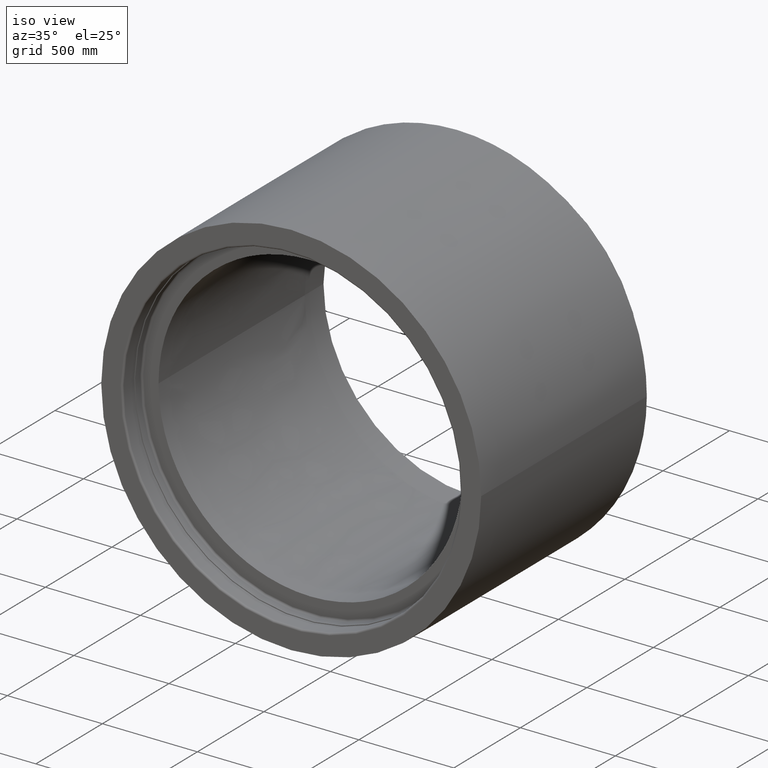
[diagram: clean part render]
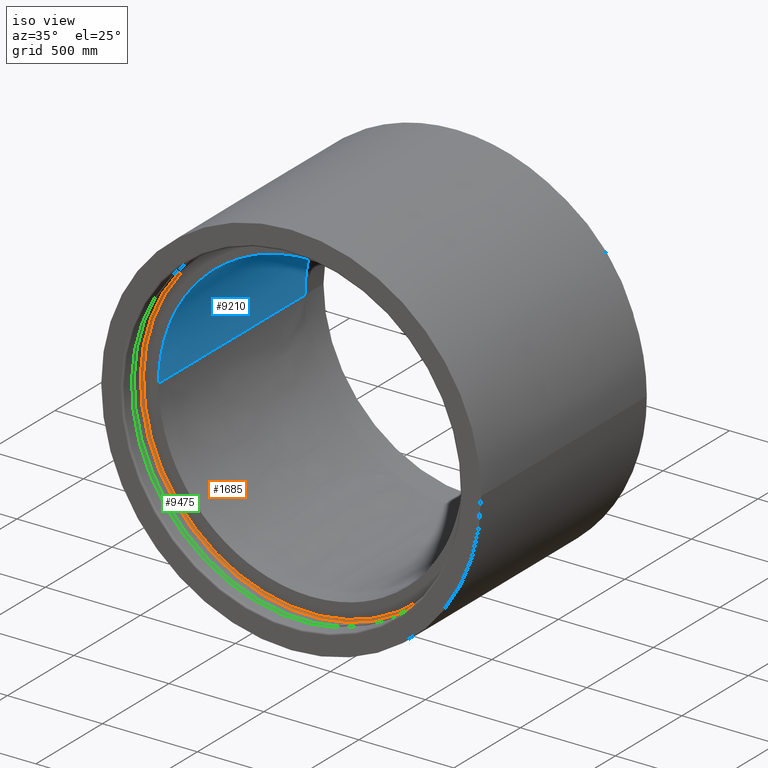
[diagram: same view with three faces highlighted in distinct colors, each labeled with its STEP entity id]
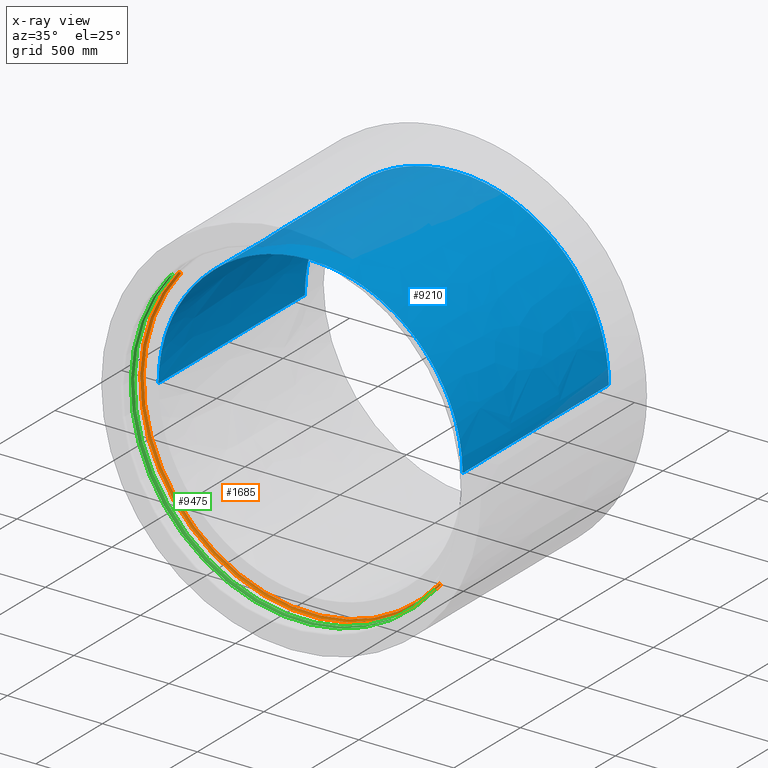
[diagram: x-ray of the same camera — body ghosted, the three highlighted faces saturated]
A machine part, iso view with three faces highlighted in distinct colors.
The next image is the same camera in x-ray (body ghosted, the three faces saturated) — at least one of them is partly hidden behind the body in this view.
Their STEP definitions:

[orange] entity #1685 — the highlighted toroidal blend (fillet) surface has major radius 879 mm and minor (blend) radius 10 mm.
#1685 = ADVANCED_FACE ( 'NONE', ( #10109 ), #5125, .F. ) ;
#2878 = ORIENTED_EDGE ( 'NONE', *, *, #14675, .F. ) ;
#3045 = CARTESIAN_POINT ( 'NONE',  ( -680.8981955093929628, -555.8944570258390740, -10.00000000000015277 ) ) ;
#3657 = CIRCLE ( 'NONE', #22501, 879.0000000000000000 ) ;
#3824 = ORIENTED_EDGE ( 'NONE', *, *, #18059, .F. ) ;
#4433 = ORIENTED_EDGE ( 'NONE', *, *, #5187, .T. ) ;
#4457 = CARTESIAN_POINT ( 'NONE',  ( 0.0000000000000000000, 1.912374979584891375E-15, -10.00000000000003730 ) ) ;
#4613 = VERTEX_POINT ( 'NONE', #11025 ) ;
#5125 = TOROIDAL_SURFACE ( 'NONE', #7694, 879.0000000000000000, 10.00000000000000533 ) ;
#5187 = EDGE_CURVE ( 'NONE', #4613, #15188, #3657, .T. ) ;
#6337 = DIRECTION ( 'NONE',  ( 0.7746282087706405362, 0.6324169021909431532, 0.0000000000000000000 ) ) ;
#6635 = DIRECTION ( 'NONE',  ( -0.6324169021909431532, 0.7746282087706405362, 1.384488183606091381E-16 ) ) ;
#7036 = EDGE_LOOP ( 'NONE', ( #2878, #3824, #15605, #4433 ) ) ;
#7694 = AXIS2_PLACEMENT_3D ( 'NONE', #17614, #22492, #17163 ) ;
#8186 = CARTESIAN_POINT ( 'NONE',  ( 680.8981955093928491, 555.8944570258391877, -9.999999999999920064 ) ) ;
#8373 = CIRCLE ( 'NONE', #21681, 889.0000000000000000 ) ;
#10101 = DIRECTION ( 'NONE',  ( -0.7746282087706405362, -0.6324169021909431532, 0.0000000000000000000 ) ) ;
#10109 = FACE_OUTER_BOUND ( 'NONE', #7036, .T. ) ;
#11025 = CARTESIAN_POINT ( 'NONE',  ( 680.8981955093928491, 555.8944570258391877, 8.699282741948600589E-14 ) ) ;
#11499 = CARTESIAN_POINT ( 'NONE',  ( 688.6444775970993533, 562.2186260477485575, -9.999999999999918288 ) ) ;
#11775 = CIRCLE ( 'NONE', #18396, 10.00000000000005329 ) ;
#13715 = DIRECTION ( 'NONE',  ( -1.532081463855070920E-17, -1.912374979584885558E-16, 1.000000000000000000 ) ) ;
#14675 = EDGE_CURVE ( 'NONE', #20799, #15188, #17668, .T. ) ;
#14692 = DIRECTION ( 'NONE',  ( -1.532081463855070920E-17, -1.912374979584885558E-16, 1.000000000000000000 ) ) ;
#14914 = CARTESIAN_POINT ( 'NONE',  ( -688.6444775970994669, -562.2186260477485575, -10.00000000000015454 ) ) ;
#15188 = VERTEX_POINT ( 'NONE', #17607 ) ;
#15605 = ORIENTED_EDGE ( 'NONE', *, *, #21241, .T. ) ;
#16425 = DIRECTION ( 'NONE',  ( 0.7746282087706403141, 0.6324169021909433752, 1.328097612420220536E-16 ) ) ;
#16714 = DIRECTION ( 'NONE',  ( 0.7746282087706404251, 0.6324169021909432642, 1.326897596922642135E-16 ) ) ;
#17163 = DIRECTION ( 'NONE',  ( 0.7746282087706404251, 0.6324169021909432642, 1.328097612420216838E-16 ) ) ;
#17607 = CARTESIAN_POINT ( 'NONE',  ( -680.8981955093929628, -555.8944570258390740, -1.459734256026974219E-13 ) ) ;
#17614 = CARTESIAN_POINT ( 'NONE',  ( 0.0000000000000000000, 2.472930636389355648E-15, -10.00000000000003730 ) ) ;
#17668 = CIRCLE ( 'NONE', #20616, 10.00000000000005329 ) ;
#18059 = EDGE_CURVE ( 'NONE', #22464, #20799, #8373, .T. ) ;
#18396 = AXIS2_PLACEMENT_3D ( 'NONE', #8186, #22187, #6337 ) ;
#20616 = AXIS2_PLACEMENT_3D ( 'NONE', #3045, #6635, #10101 ) ;
#20799 = VERTEX_POINT ( 'NONE', #14914 ) ;
#21241 = EDGE_CURVE ( 'NONE', #22464, #4613, #11775, .T. ) ;
#21681 = AXIS2_PLACEMENT_3D ( 'NONE', #4457, #13715, #16714 ) ;
#21866 = CARTESIAN_POINT ( 'NONE',  ( 0.0000000000000000000, 4.673217604800220518E-30, -2.775557561562891351E-14 ) ) ;
#22187 = DIRECTION ( 'NONE',  ( 0.6324169021909432642, -0.7746282087706404251, -1.384488183606091135E-16 ) ) ;
#22464 = VERTEX_POINT ( 'NONE', #11499 ) ;
#22492 = DIRECTION ( 'NONE',  ( -1.532081463855070920E-17, -1.912374979584885558E-16, 1.000000000000000000 ) ) ;
#22501 = AXIS2_PLACEMENT_3D ( 'NONE', #21866, #14692, #16425 ) ;

[blue] entity #9210 — the highlighted face is a freeform B-spline surface patch.
#95 = CARTESIAN_POINT ( 'NONE',  ( 0.0000000000000000000, 0.0000000000000000000, 0.0000000000000000000 ) ) ;
#109 = CARTESIAN_POINT ( 'NONE',  ( -799.9999999999998863, -212.1671871999999439, 1100.000000000000000 ) ) ;
#220 = CARTESIAN_POINT ( 'NONE',  ( -715.7102817636333612, 415.6605681348422081, 0.0000000000000000000 ) ) ;
#315 = DIRECTION ( 'NONE',  ( 0.0000000000000000000, 0.0000000000000000000, 1.000000000000000000 ) ) ;
#331 = ORIENTED_EDGE ( 'NONE', *, *, #2156, .T. ) ;
#334 = CARTESIAN_POINT ( 'NONE',  ( -799.9999999999998863, -212.1671871999999439, 0.0000000000000000000 ) ) ;
#375 = VERTEX_POINT ( 'NONE', #10428 ) ;
#443 = CARTESIAN_POINT ( 'NONE',  ( -415.6605681348412986, -715.7102817636333612, 1100.000000000000000 ) ) ;
#544 = VERTEX_POINT ( 'NONE', #9349 ) ;
#551 = ORIENTED_EDGE ( 'NONE', *, *, #12393, .T. ) ;
#553 = CARTESIAN_POINT ( 'NONE',  ( -715.7102817636330201, -415.6605681348418102, 366.6666666666666856 ) ) ;
#576 = VERTEX_POINT ( 'NONE', #21290 ) ;
#671 = DIRECTION ( 'NONE',  ( 0.0000000000000000000, 0.0000000000000000000, 1.000000000000000000 ) ) ;
#693 = AXIS2_PLACEMENT_3D ( 'NONE', #17543, #13961, #3551 ) ;
#713 = CIRCLE ( 'NONE', #13648, 800.0000000000000000 ) ;
#831 = DIRECTION ( 'NONE',  ( 0.0000000000000000000, 0.0000000000000000000, 1.000000000000000000 ) ) ;
#1078 = AXIS2_PLACEMENT_3D ( 'NONE', #22106, #831, #13310 ) ;
#1090 = EDGE_CURVE ( 'NONE', #21488, #11514, #17312, .T. ) ;
#1217 = DIRECTION ( 'NONE',  ( 1.000000000000000000, 0.0000000000000000000, 0.0000000000000000000 ) ) ;
#1389 = CARTESIAN_POINT ( 'NONE',  ( 797.6959486832436141, -63.37803044931553131, 1100.000000000000000 ) ) ;
#1482 = EDGE_CURVE ( 'NONE', #2697, #18283, #19160, .T. ) ;
#1509 = CARTESIAN_POINT ( 'NONE',  ( 685.7053104007547972, -445.6655394977190667, 733.3333333333333712 ) ) ;
#1552 = CARTESIAN_POINT ( 'NONE',  ( 800.0000000000000000, -2.343931406529778409E-30, 0.0000000000000000000 ) ) ;
#1600 = CARTESIAN_POINT ( 'NONE',  ( 0.0000000000000000000, 0.0000000000000000000, 0.0000000000000000000 ) ) ;
#1621 = CARTESIAN_POINT ( 'NONE',  ( 799.5785514088180435, -31.78170904867310398, 366.6666666666666856 ) ) ;
#1669 = DIRECTION ( 'NONE',  ( 1.000000000000000000, 0.0000000000000000000, 0.0000000000000000000 ) ) ;
#1687 = VERTEX_POINT ( 'NONE', #10561 ) ;
#1716 = DIRECTION ( 'NONE',  ( 0.0000000000000000000, 0.0000000000000000000, 1.000000000000000000 ) ) ;
#1727 = CARTESIAN_POINT ( 'NONE',  ( 415.6605681348423786, -715.7102817636321106, 366.6666666666666856 ) ) ;
#1790 = AXIS2_PLACEMENT_3D ( 'NONE', #17958, #21439, #1669 ) ;
#1842 = CARTESIAN_POINT ( 'NONE',  ( -800.0000000000001137, 212.1671872000003987, 1100.000000000000000 ) ) ;
#1941 = EDGE_CURVE ( 'NONE', #16986, #12466, #20651, .T. ) ;
#1954 = CARTESIAN_POINT ( 'NONE',  ( 768.5265444599309603, 281.7858148035815589, 0.0000000000000000000 ) ) ;
#2061 = CARTESIAN_POINT ( 'NONE',  ( -415.6605681348422081, 715.7102817636340433, 0.0000000000000000000 ) ) ;
#2156 = EDGE_CURVE ( 'NONE', #14139, #10625, #2905, .T. ) ;
#2174 = AXIS2_PLACEMENT_3D ( 'NONE', #3327, #4950, #17322 ) ;
#2175 = CARTESIAN_POINT ( 'NONE',  ( 794.5768320536110423, 94.77705267919952803, 366.6666666666666856 ) ) ;
#2183 = CIRCLE ( 'NONE', #10312, 800.0000000000000000 ) ;
#2187 = CARTESIAN_POINT ( 'NONE',  ( 1.026956297778269800E-12, -800.0000000000000000, 1100.000000000000000 ) ) ;
#2219 = ORIENTED_EDGE ( 'NONE', *, *, #19543, .T. ) ;
#2287 = CARTESIAN_POINT ( 'NONE',  ( -415.6605681348422081, 715.7102817636340433, 1100.000000000000000 ) ) ;
#2669 = ORIENTED_EDGE ( 'NONE', *, *, #13509, .T. ) ;
#2697 = VERTEX_POINT ( 'NONE', #4763 ) ;
#2759 = ORIENTED_EDGE ( 'NONE', *, *, #10907, .F. ) ;
#2905 = CIRCLE ( 'NONE', #22103, 800.0000000000000000 ) ;
#2940 = CARTESIAN_POINT ( 'NONE',  ( 0.0000000000000000000, 0.0000000000000000000, 0.0000000000000000000 ) ) ;
#2949 = CARTESIAN_POINT ( 'NONE',  ( 799.9999999999997726, 10.60835936000093582, 366.6666666666666856 ) ) ;
#2962 = CARTESIAN_POINT ( 'NONE',  ( 0.0000000000000000000, 0.0000000000000000000, 1100.000000000000000 ) ) ;
#3002 = CARTESIAN_POINT ( 'NONE',  ( 768.5265444599308466, -281.7858148035792283, 0.0000000000000000000 ) ) ;
#3060 = CARTESIAN_POINT ( 'NONE',  ( 799.9999999999997726, 10.60835936000093582, 0.0000000000000000000 ) ) ;
#3282 = DIRECTION ( 'NONE',  ( 1.000000000000000000, 0.0000000000000000000, 0.0000000000000000000 ) ) ;
#3327 = CARTESIAN_POINT ( 'NONE',  ( 0.0000000000000000000, 0.0000000000000000000, 1100.000000000000000 ) ) ;
#3350 = CARTESIAN_POINT ( 'NONE',  ( 799.9999999999997726, -10.60835935999907775, 366.6666666666666856 ) ) ;
#3462 = CARTESIAN_POINT ( 'NONE',  ( 768.5265444599308466, -281.7858148035792283, 1100.000000000000000 ) ) ;
#3503 = ORIENTED_EDGE ( 'NONE', *, *, #1090, .T. ) ;
#3551 = DIRECTION ( 'NONE',  ( 1.000000000000000000, 0.0000000000000000000, 0.0000000000000000000 ) ) ;
#3575 = CARTESIAN_POINT ( 'NONE',  ( 212.1671872000001713, 800.0000000000002274, 1100.000000000000000 ) ) ;
#3692 = CARTESIAN_POINT ( 'NONE',  ( -212.1671871999999155, 800.0000000000002274, 733.3333333333333712 ) ) ;
#3800 = CARTESIAN_POINT ( 'NONE',  ( 797.6959486832436141, 63.37803044931740715, 0.0000000000000000000 ) ) ;
#3914 = CARTESIAN_POINT ( 'NONE',  ( -415.6605681348422081, 715.7102817636339296, 733.3333333333333712 ) ) ;
#3937 = ORIENTED_EDGE ( 'NONE', *, *, #12064, .F. ) ;
#4014 = CARTESIAN_POINT ( 'NONE',  ( 383.3115343217939994, -702.1910663888741055, 1100.000000000000000 ) ) ;
#4025 = CARTESIAN_POINT ( 'NONE',  ( 799.5785514088180435, 31.78170904867497271, 0.0000000000000000000 ) ) ;
#4309 = CARTESIAN_POINT ( 'NONE',  ( 767.5662499545701394, -225.4818795185826446, 1100.000000000000000 ) ) ;
#4423 = CARTESIAN_POINT ( 'NONE',  ( 2.220446049250313081E-13, -799.9999999999997726, 0.0000000000000000000 ) ) ;
#4494 = VERTEX_POINT ( 'NONE', #6658 ) ;
#4499 = VERTEX_POINT ( 'NONE', #13711 ) ;
#4526 = CARTESIAN_POINT ( 'NONE',  ( -800.0000000000001137, -1.065814103640150481E-12, 1100.000000000000000 ) ) ;
#4704 = ORIENTED_EDGE ( 'NONE', *, *, #1482, .T. ) ;
#4763 = CARTESIAN_POINT ( 'NONE',  ( 702.1910649344947615, -383.3115335333382632, 1100.000000000000000 ) ) ;
#4799 = CARTESIAN_POINT ( 'NONE',  ( -800.0000000000001137, -1.065814103640150481E-12, 1100.000000000000000 ) ) ;
#4820 = DIRECTION ( 'NONE',  ( 0.0000000000000000000, 0.0000000000000000000, 1.000000000000000000 ) ) ;
#4849 = ORIENTED_EDGE ( 'NONE', *, *, #10350, .F. ) ;
#4950 = DIRECTION ( 'NONE',  ( 0.0000000000000000000, 0.0000000000000000000, 1.000000000000000000 ) ) ;
#5013 = CARTESIAN_POINT ( 'NONE',  ( -565.6854249492380404, -565.6854249492381541, -1.110223024625156540E-13 ) ) ;
#5035 = CARTESIAN_POINT ( 'NONE',  ( 800.0000000000000000, 9.678423597083619583E-13, 1100.000000000000000 ) ) ;
#5073 = VERTEX_POINT ( 'NONE', #7294 ) ;
#5121 = CARTESIAN_POINT ( 'NONE',  ( 0.0000000000000000000, 0.0000000000000000000, 0.0000000000000000000 ) ) ;
#5200 = CARTESIAN_POINT ( 'NONE',  ( 799.9999999999997726, -10.60835935999907420, 1100.000000000000000 ) ) ;
#5262 = CARTESIAN_POINT ( 'NONE',  ( 0.0000000000000000000, 0.0000000000000000000, 0.0000000000000000000 ) ) ;
#5309 = CARTESIAN_POINT ( 'NONE',  ( 415.6605681348423218, -715.7102817636322243, 1100.000000000000000 ) ) ;
#5422 = CARTESIAN_POINT ( 'NONE',  ( -715.7102817636331338, -415.6605681348418102, 1100.000000000000000 ) ) ;
#5537 = CARTESIAN_POINT ( 'NONE',  ( 794.5768320536110423, 94.77705267919951382, 733.3333333333333712 ) ) ;
#5612 = DIRECTION ( 'NONE',  ( 1.000000000000000000, 0.0000000000000000000, 0.0000000000000000000 ) ) ;
#5644 = CARTESIAN_POINT ( 'NONE',  ( 415.6605681348424355, 715.7102817636338159, 733.3333333333333712 ) ) ;
#5754 = CARTESIAN_POINT ( 'NONE',  ( 799.5785514088180435, 31.78170904867497271, 733.3333333333333712 ) ) ;
#5791 = CARTESIAN_POINT ( 'NONE',  ( 0.0000000000000000000, 0.0000000000000000000, 1100.000000000000000 ) ) ;
#5868 = CARTESIAN_POINT ( 'NONE',  ( 799.9999999999997726, 10.60835936000093582, 1100.000000000000000 ) ) ;
#5968 = CARTESIAN_POINT ( 'NONE',  ( 0.0000000000000000000, 0.0000000000000000000, 1100.000000000000000 ) ) ;
#6011 = EDGE_CURVE ( 'NONE', #10102, #14988, #6981, .T. ) ;
#6044 = EDGE_CURVE ( 'NONE', #576, #15063, #12520, .T. ) ;
#6062 = CARTESIAN_POINT ( 'NONE',  ( 0.0000000000000000000, 0.0000000000000000000, 1100.000000000000000 ) ) ;
#6211 = AXIS2_PLACEMENT_3D ( 'NONE', #10108, #20404, #8014 ) ;
#6249 = VERTEX_POINT ( 'NONE', #7593 ) ;
#6658 = CARTESIAN_POINT ( 'NONE',  ( -225.4818795228605097, -767.5662499533142409, 1100.000000000000000 ) ) ;
#6752 = CARTESIAN_POINT ( 'NONE',  ( 0.0000000000000000000, 0.0000000000000000000, 1100.000000000000000 ) ) ;
#6924 = CARTESIAN_POINT ( 'NONE',  ( 794.5768320536110423, -94.77705267919728271, 1100.000000000000000 ) ) ;
#6962 = DIRECTION ( 'NONE',  ( 0.0000000000000000000, 0.0000000000000000000, 1.000000000000000000 ) ) ;
#6981 = CIRCLE ( 'NONE', #20668, 800.0000000000000000 ) ;
#7054 = CARTESIAN_POINT ( 'NONE',  ( 0.0000000000000000000, 0.0000000000000000000, 0.0000000000000000000 ) ) ;
#7149 = CARTESIAN_POINT ( 'NONE',  ( 415.6605681348424355, 715.7102817636338159, 0.0000000000000000000 ) ) ;
#7234 = DIRECTION ( 'NONE',  ( 1.000000000000000000, 0.0000000000000000000, 0.0000000000000000000 ) ) ;
#7260 = CARTESIAN_POINT ( 'NONE',  ( 794.5768320536110423, 94.77705267919954224, 1100.000000000000000 ) ) ;
#7294 = CARTESIAN_POINT ( 'NONE',  ( -383.3115303920826591, -702.1910592557329664, -8.326672684688674053E-14 ) ) ;
#7303 = AXIS2_PLACEMENT_3D ( 'NONE', #13365, #4820, #20429 ) ;
#7313 = CARTESIAN_POINT ( 'NONE',  ( -225.4818769940198706, -767.5662413458858282, -8.326672684688674053E-14 ) ) ;
#7354 = AXIS2_PLACEMENT_3D ( 'NONE', #5262, #12429, #14276 ) ;
#7356 = DIRECTION ( 'NONE',  ( 1.000000000000000000, 0.0000000000000000000, 0.0000000000000000000 ) ) ;
#7373 = CARTESIAN_POINT ( 'NONE',  ( 212.1671872000005976, -799.9999999999992042, 0.0000000000000000000 ) ) ;
#7396 = ORIENTED_EDGE ( 'NONE', *, *, #7449, .F. ) ;
#7449 = EDGE_CURVE ( 'NONE', #19072, #16986, #8079, .T. ) ;
#7458 = EDGE_CURVE ( 'NONE', #19918, #20057, #21396, .T. ) ;
#7482 = CARTESIAN_POINT ( 'NONE',  ( 799.5785514088180435, 31.78170904867497271, 1100.000000000000000 ) ) ;
#7591 = CARTESIAN_POINT ( 'NONE',  ( -715.7102817636333612, 415.6605681348422081, 1100.000000000000000 ) ) ;
#7593 = CARTESIAN_POINT ( 'NONE',  ( 702.1910592381697143, -383.3115304241534318, -2.775557561562891351E-14 ) ) ;
#7663 = EDGE_CURVE ( 'NONE', #9671, #1687, #14367, .T. ) ;
#8008 = ORIENTED_EDGE ( 'NONE', *, *, #17194, .T. ) ;
#8014 = DIRECTION ( 'NONE',  ( 1.000000000000000000, 0.0000000000000000000, 0.0000000000000000000 ) ) ;
#8079 = CIRCLE ( 'NONE', #693, 800.0000000000000000 ) ;
#8154 = DIRECTION ( 'NONE',  ( 0.0000000000000000000, 0.0000000000000000000, 1.000000000000000000 ) ) ;
#8161 = EDGE_CURVE ( 'NONE', #10625, #9671, #2183, .T. ) ;
#8261 = DIRECTION ( 'NONE',  ( 1.000000000000000000, 0.0000000000000000000, 0.0000000000000000000 ) ) ;
#8263 = CARTESIAN_POINT ( 'NONE',  ( 565.6854249492384952, -565.6854249492375857, -1.110223024625156540E-13 ) ) ;
#8272 = DIRECTION ( 'NONE',  ( 1.000000000000000000, 0.0000000000000000000, 0.0000000000000000000 ) ) ;
#8315 = CARTESIAN_POINT ( 'NONE',  ( 212.1671872000005976, -799.9999999999992042, 1100.000000000000000 ) ) ;
#8393 = CARTESIAN_POINT ( 'NONE',  ( 0.0000000000000000000, 0.0000000000000000000, 1100.000000000000000 ) ) ;
#8434 = CARTESIAN_POINT ( 'NONE',  ( 768.5265444599306193, -281.7858148035792283, 733.3333333333333712 ) ) ;
#8475 = AXIS2_PLACEMENT_3D ( 'NONE', #11970, #22265, #1217 ) ;
#8552 = CARTESIAN_POINT ( 'NONE',  ( 685.7053104007547972, -445.6655394977190667, 0.0000000000000000000 ) ) ;
#8615 = CARTESIAN_POINT ( 'NONE',  ( 799.9999999999997726, 1.024354212564304589E-12, 366.6666666666666856 ) ) ;
#8655 = ORIENTED_EDGE ( 'NONE', *, *, #6011, .F. ) ;
#8663 = CARTESIAN_POINT ( 'NONE',  ( 797.6959486832436141, -63.37803044931553131, 0.0000000000000000000 ) ) ;
#8814 = DIRECTION ( 'NONE',  ( 1.000000000000000000, 0.0000000000000000000, 0.0000000000000000000 ) ) ;
#8824 = DIRECTION ( 'NONE',  ( 0.0000000000000000000, 0.0000000000000000000, 1.000000000000000000 ) ) ;
#8891 = CARTESIAN_POINT ( 'NONE',  ( -212.1671871999999155, 800.0000000000002274, 0.0000000000000000000 ) ) ;
#9002 = CARTESIAN_POINT ( 'NONE',  ( -212.1671871999994607, -799.9999999999997726, 0.0000000000000000000 ) ) ;
#9017 = DIRECTION ( 'NONE',  ( 1.000000000000000000, 0.0000000000000000000, 0.0000000000000000000 ) ) ;
#9107 = CARTESIAN_POINT ( 'NONE',  ( -715.7102817636330201, -415.6605681348418102, 733.3333333333333712 ) ) ;
#9153 = AXIS2_PLACEMENT_3D ( 'NONE', #95, #1716, #12463 ) ;
#9174 = AXIS2_PLACEMENT_3D ( 'NONE', #2940, #18543, #22256 ) ;
#9210 = ADVANCED_FACE ( 'NONE', ( #13873 ), #11106, .F. ) ;
#9224 = CARTESIAN_POINT ( 'NONE',  ( 212.1671872000001713, 800.0000000000002274, 366.6666666666666856 ) ) ;
#9226 = CARTESIAN_POINT ( 'NONE',  ( 0.0000000000000000000, 0.0000000000000000000, 0.0000000000000000000 ) ) ;
#9233 = EDGE_CURVE ( 'NONE', #12466, #19918, #14381, .T. ) ;
#9336 = CARTESIAN_POINT ( 'NONE',  ( 768.5265444599309603, 281.7858148035815589, 733.3333333333333712 ) ) ;
#9338 = DIRECTION ( 'NONE',  ( 0.0000000000000000000, 0.0000000000000000000, 1.000000000000000000 ) ) ;
#9349 = CARTESIAN_POINT ( 'NONE',  ( -800.0000000000001137, 1.600081744284097638E-13, 0.0000000000000000000 ) ) ;
#9515 = ORIENTED_EDGE ( 'NONE', *, *, #17647, .F. ) ;
#9671 = VERTEX_POINT ( 'NONE', #4014 ) ;
#9681 = CARTESIAN_POINT ( 'NONE',  ( 0.0000000000000000000, 0.0000000000000000000, 0.0000000000000000000 ) ) ;
#9726 = CARTESIAN_POINT ( 'NONE',  ( -800.0000000000000000, 2.220446049250313081E-13, 733.3333333333333712 ) ) ;
#9902 = CIRCLE ( 'NONE', #9153, 800.0000000000000000 ) ;
#9942 = CIRCLE ( 'NONE', #15857, 800.0000000000000000 ) ;
#9956 = VERTEX_POINT ( 'NONE', #15018 ) ;
#10001 = CARTESIAN_POINT ( 'NONE',  ( 799.9999999999997726, 1.025221574302292993E-12, 1100.000000000000000 ) ) ;
#10056 = CARTESIAN_POINT ( 'NONE',  ( 415.6605681348423218, -715.7102817636322243, 0.0000000000000000000 ) ) ;
#10102 = VERTEX_POINT ( 'NONE', #16285 ) ;
#10108 = CARTESIAN_POINT ( 'NONE',  ( 0.0000000000000000000, 0.0000000000000000000, 0.0000000000000000000 ) ) ;
#10117 = CARTESIAN_POINT ( 'NONE',  ( 799.9999999999997726, 1.025221574302292993E-12, 0.0000000000000000000 ) ) ;
#10221 = ORIENTED_EDGE ( 'NONE', *, *, #1941, .F. ) ;
#10227 = CARTESIAN_POINT ( 'NONE',  ( 0.0000000000000000000, 0.0000000000000000000, 1100.000000000000000 ) ) ;
#10312 = AXIS2_PLACEMENT_3D ( 'NONE', #6062, #18211, #5612 ) ;
#10350 = EDGE_CURVE ( 'NONE', #375, #10102, #22141, .T. ) ;
#10359 = CARTESIAN_POINT ( 'NONE',  ( 799.9999999999997726, 1.024354212564304589E-12, 733.3333333333333712 ) ) ;
#10416 = CARTESIAN_POINT ( 'NONE',  ( -702.1910663948432330, -383.3115343108407274, 1100.000000000000000 ) ) ;
#10428 = CARTESIAN_POINT ( 'NONE',  ( -767.5662421314777930, -225.4818772547268395, -2.775557561562891351E-14 ) ) ;
#10516 = CARTESIAN_POINT ( 'NONE',  ( 794.5768320536110423, -94.77705267919728271, 0.0000000000000000000 ) ) ;
#10561 = CARTESIAN_POINT ( 'NONE',  ( 565.6854249492387225, -565.6854249492373583, 1100.000000000000000 ) ) ;
#10625 = VERTEX_POINT ( 'NONE', #12207 ) ;
#10627 = CARTESIAN_POINT ( 'NONE',  ( 799.9999999999997726, 10.60835936000093582, 733.3333333333333712 ) ) ;
#10642 = AXIS2_PLACEMENT_3D ( 'NONE', #5968, #315, #7356 ) ;
#10689 = AXIS2_PLACEMENT_3D ( 'NONE', #7054, #17699, #9017 ) ;
#10741 = CARTESIAN_POINT ( 'NONE',  ( 685.7053104007547972, 445.6655394977215110, 366.6666666666666856 ) ) ;
#10847 = CARTESIAN_POINT ( 'NONE',  ( -212.1671871999994607, -799.9999999999997726, 366.6666666666666856 ) ) ;
#10907 = EDGE_CURVE ( 'NONE', #20057, #6249, #19197, .T. ) ;
#10918 = ORIENTED_EDGE ( 'NONE', *, *, #7458, .F. ) ;
#10962 = CARTESIAN_POINT ( 'NONE',  ( -212.1671871999999155, 800.0000000000002274, 1100.000000000000000 ) ) ;
#11027 = AXIS2_PLACEMENT_3D ( 'NONE', #6752, #15654, #15884 ) ;
#11079 = CARTESIAN_POINT ( 'NONE',  ( -212.1671871999994607, -799.9999999999997726, 1100.000000000000000 ) ) ;
#11106 = B_SPLINE_SURFACE_WITH_KNOTS ( 'NONE', 3, 3, ( 
 ( #20938, #19081, #13985, #17345 ),
 ( #5200, #19196, #3350, #15718 ),
 ( #17457, #20826, #1621, #22777 ),
 ( #1389, #15373, #22557, #8663 ),
 ( #6924, #15830, #22891, #10516 ),
 ( #3462, #8434, #21054, #3002 ),
 ( #12026, #1509, #19308, #8552 ),
 ( #5309, #17566, #1727, #10056 ),
 ( #8315, #22437, #19420, #7373 ),
 ( #11079, #17796, #10847, #9002 ),
 ( #443, #18016, #21278, #16389 ),
 ( #5422, #9107, #553, #16057 ),
 ( #109, #21387, #14210, #334 ),
 ( #1842, #14549, #14324, #17907 ),
 ( #7591, #12476, #19535, #220 ),
 ( #2287, #3914, #14437, #2061 ),
 ( #10962, #3692, #21717, #8891 ),
 ( #3575, #14655, #9224, #21499 ),
 ( #16166, #5644, #21606, #7149 ),
 ( #18130, #17682, #10741, #15948 ),
 ( #12698, #9336, #19757, #1954 ),
 ( #7260, #5537, #2175, #16281 ),
 ( #12592, #12809, #19648, #3800 ),
 ( #7482, #5754, #19871, #4025 ),
 ( #5868, #10627, #2949, #3060 ),
 ( #10001, #16935, #17055, #10117 ) ),
 .UNSPECIFIED., .T., .F., .F.,
 ( 4, 1, 1, 1, 1, 2, 2, 2, 2, 2, 2, 2, 1, 1, 1, 1, 4 ),
 ( 4, 4 ),
 ( 0.0000000000000000000, 0.006250000000000088818, 0.01249999999999995559, 0.01875000000000004441, 0.02499999999999991118, 0.1250000000000000000, 0.2500000000000000000, 0.3750000000000000000, 0.5000000000000000000, 0.6250000000000000000, 0.7500000000000000000, 0.8750000000000000000, 0.9749999999999999778, 0.9812499999999999556, 0.9875000000000000444, 0.9937500000000000222, 1.000000000000000000 ),
 ( 0.0000000000000000000, 1.000000000000000000 ),
 .UNSPECIFIED. ) ;
#11114 = DIRECTION ( 'NONE',  ( 1.000000000000000000, 0.0000000000000000000, 0.0000000000000000000 ) ) ;
#11121 = EDGE_CURVE ( 'NONE', #9956, #15063, #13448, .T. ) ;
#11401 = AXIS2_PLACEMENT_3D ( 'NONE', #1600, #21475, #7234 ) ;
#11514 = VERTEX_POINT ( 'NONE', #17943 ) ;
#11546 = ORIENTED_EDGE ( 'NONE', *, *, #11782, .F. ) ;
#11580 = CARTESIAN_POINT ( 'NONE',  ( -800.0000000000000000, 2.220446049250313081E-13, 366.6666666666666856 ) ) ;
#11782 = EDGE_CURVE ( 'NONE', #6249, #576, #13213, .T. ) ;
#11970 = CARTESIAN_POINT ( 'NONE',  ( 0.0000000000000000000, 0.0000000000000000000, 0.0000000000000000000 ) ) ;
#12026 = CARTESIAN_POINT ( 'NONE',  ( 685.7053104007547972, -445.6655394977190667, 1100.000000000000000 ) ) ;
#12064 = EDGE_CURVE ( 'NONE', #544, #375, #9902, .T. ) ;
#12147 = CIRCLE ( 'NONE', #6211, 800.0000000000000000 ) ;
#12164 = AXIS2_PLACEMENT_3D ( 'NONE', #9226, #9338, #13030 ) ;
#12207 = CARTESIAN_POINT ( 'NONE',  ( 225.4818790471224190, -767.5662483687119675, 1100.000000000000000 ) ) ;
#12393 = EDGE_CURVE ( 'NONE', #17387, #21488, #19143, .T. ) ;
#12429 = DIRECTION ( 'NONE',  ( 0.0000000000000000000, 0.0000000000000000000, 1.000000000000000000 ) ) ;
#12463 = DIRECTION ( 'NONE',  ( 1.000000000000000000, 0.0000000000000000000, 0.0000000000000000000 ) ) ;
#12466 = VERTEX_POINT ( 'NONE', #15099 ) ;
#12476 = CARTESIAN_POINT ( 'NONE',  ( -715.7102817636333612, 415.6605681348422081, 733.3333333333333712 ) ) ;
#12504 = AXIS2_PLACEMENT_3D ( 'NONE', #17056, #15434, #8261 ) ;
#12520 = CIRCLE ( 'NONE', #12164, 800.0000000000000000 ) ;
#12592 = CARTESIAN_POINT ( 'NONE',  ( 797.6959486832436141, 63.37803044931740715, 1100.000000000000000 ) ) ;
#12631 = ORIENTED_EDGE ( 'NONE', *, *, #14863, .T. ) ;
#12698 = CARTESIAN_POINT ( 'NONE',  ( 768.5265444599309603, 281.7858148035815589, 1100.000000000000000 ) ) ;
#12809 = CARTESIAN_POINT ( 'NONE',  ( 797.6959486832436141, 63.37803044931740715, 733.3333333333333712 ) ) ;
#12833 = ORIENTED_EDGE ( 'NONE', *, *, #21948, .F. ) ;
#13030 = DIRECTION ( 'NONE',  ( 1.000000000000000000, 0.0000000000000000000, 0.0000000000000000000 ) ) ;
#13213 = CIRCLE ( 'NONE', #1790, 800.0000000000000000 ) ;
#13310 = DIRECTION ( 'NONE',  ( 1.000000000000000000, 0.0000000000000000000, 0.0000000000000000000 ) ) ;
#13365 = CARTESIAN_POINT ( 'NONE',  ( 0.0000000000000000000, 0.0000000000000000000, 1100.000000000000000 ) ) ;
#13448 = B_SPLINE_CURVE_WITH_KNOTS ( 'NONE', 3,
 ( #5035, #10359, #8615, #15672 ),
 .UNSPECIFIED., .F., .F.,
 ( 4, 4 ),
 ( 0.0000000000000000000, 1.000000000000000000 ),
 .UNSPECIFIED. ) ;
#13509 = EDGE_CURVE ( 'NONE', #4494, #14139, #22083, .T. ) ;
#13648 = AXIS2_PLACEMENT_3D ( 'NONE', #2962, #8154, #8272 ) ;
#13711 = CARTESIAN_POINT ( 'NONE',  ( -767.5662483578732918, -225.4818790840999725, 1100.000000000000000 ) ) ;
#13773 = EDGE_CURVE ( 'NONE', #22515, #544, #18536, .T. ) ;
#13873 = FACE_OUTER_BOUND ( 'NONE', #16213, .T. ) ;
#13961 = DIRECTION ( 'NONE',  ( 0.0000000000000000000, 0.0000000000000000000, 1.000000000000000000 ) ) ;
#13985 = CARTESIAN_POINT ( 'NONE',  ( 799.9999999999997726, 1.024354212564304589E-12, 366.6666666666666856 ) ) ;
#14139 = VERTEX_POINT ( 'NONE', #2187 ) ;
#14210 = CARTESIAN_POINT ( 'NONE',  ( -799.9999999999998863, -212.1671871999999439, 366.6666666666666856 ) ) ;
#14276 = DIRECTION ( 'NONE',  ( 1.000000000000000000, 0.0000000000000000000, 0.0000000000000000000 ) ) ;
#14324 = CARTESIAN_POINT ( 'NONE',  ( -800.0000000000001137, 212.1671872000003987, 366.6666666666666856 ) ) ;
#14367 = CIRCLE ( 'NONE', #1078, 800.0000000000000000 ) ;
#14381 = CIRCLE ( 'NONE', #8475, 800.0000000000000000 ) ;
#14437 = CARTESIAN_POINT ( 'NONE',  ( -415.6605681348422081, 715.7102817636339296, 366.6666666666666856 ) ) ;
#14455 = ORIENTED_EDGE ( 'NONE', *, *, #17891, .T. ) ;
#14549 = CARTESIAN_POINT ( 'NONE',  ( -800.0000000000001137, 212.1671872000003987, 733.3333333333333712 ) ) ;
#14655 = CARTESIAN_POINT ( 'NONE',  ( 212.1671872000001713, 800.0000000000002274, 733.3333333333333712 ) ) ;
#14863 = EDGE_CURVE ( 'NONE', #11514, #4494, #15444, .T. ) ;
#14867 = ORIENTED_EDGE ( 'NONE', *, *, #6044, .F. ) ;
#14988 = VERTEX_POINT ( 'NONE', #5013 ) ;
#15018 = CARTESIAN_POINT ( 'NONE',  ( 800.0000000000000000, 9.678423597083619583E-13, 1100.000000000000000 ) ) ;
#15063 = VERTEX_POINT ( 'NONE', #1552 ) ;
#15078 = CIRCLE ( 'NONE', #19158, 800.0000000000000000 ) ;
#15099 = CARTESIAN_POINT ( 'NONE',  ( 225.4818772177559367, -767.5662421423381829, -8.326672684688674053E-14 ) ) ;
#15110 = CARTESIAN_POINT ( 'NONE',  ( 383.3115300236183884, -702.1910585144062225, -5.551115123125782702E-14 ) ) ;
#15117 = AXIS2_PLACEMENT_3D ( 'NONE', #9681, #671, #21725 ) ;
#15218 = ORIENTED_EDGE ( 'NONE', *, *, #9233, .F. ) ;
#15229 = ORIENTED_EDGE ( 'NONE', *, *, #7663, .T. ) ;
#15373 = CARTESIAN_POINT ( 'NONE',  ( 797.6959486832436141, -63.37803044931553131, 733.3333333333333712 ) ) ;
#15434 = DIRECTION ( 'NONE',  ( 0.0000000000000000000, 0.0000000000000000000, 1.000000000000000000 ) ) ;
#15444 = CIRCLE ( 'NONE', #10642, 800.0000000000000000 ) ;
#15654 = DIRECTION ( 'NONE',  ( 0.0000000000000000000, 0.0000000000000000000, 1.000000000000000000 ) ) ;
#15672 = CARTESIAN_POINT ( 'NONE',  ( 800.0000000000000000, -2.343931406529778409E-30, 0.0000000000000000000 ) ) ;
#15718 = CARTESIAN_POINT ( 'NONE',  ( 799.9999999999997726, -10.60835935999907420, 0.0000000000000000000 ) ) ;
#15757 = ORIENTED_EDGE ( 'NONE', *, *, #21991, .T. ) ;
#15830 = CARTESIAN_POINT ( 'NONE',  ( 794.5768320536110423, -94.77705267919728271, 733.3333333333333712 ) ) ;
#15857 = AXIS2_PLACEMENT_3D ( 'NONE', #5791, #19909, #11114 ) ;
#15884 = DIRECTION ( 'NONE',  ( 1.000000000000000000, 0.0000000000000000000, 0.0000000000000000000 ) ) ;
#15948 = CARTESIAN_POINT ( 'NONE',  ( 685.7053104007546835, 445.6655394977215678, 0.0000000000000000000 ) ) ;
#16057 = CARTESIAN_POINT ( 'NONE',  ( -715.7102817636331338, -415.6605681348418102, 0.0000000000000000000 ) ) ;
#16166 = CARTESIAN_POINT ( 'NONE',  ( 415.6605681348424355, 715.7102817636338159, 1100.000000000000000 ) ) ;
#16213 = EDGE_LOOP ( 'NONE', ( #22707, #15757, #2219, #551, #3503, #12631, #2669, #331, #21998, #15229, #8008, #4704, #14455, #22665, #14867, #11546, #2759, #10918, #15218, #10221, #7396, #9515, #12833, #8655, #4849, #3937 ) ) ;
#16281 = CARTESIAN_POINT ( 'NONE',  ( 794.5768320536110423, 94.77705267919954224, 0.0000000000000000000 ) ) ;
#16285 = CARTESIAN_POINT ( 'NONE',  ( -702.1910585203871733, -383.3115300126711418, -5.551115123125782702E-14 ) ) ;
#16389 = CARTESIAN_POINT ( 'NONE',  ( -415.6605681348412986, -715.7102817636333612, 0.0000000000000000000 ) ) ;
#16448 = CARTESIAN_POINT ( 'NONE',  ( -565.6854249492372446, -565.6854249492388362, 1100.000000000000000 ) ) ;
#16935 = CARTESIAN_POINT ( 'NONE',  ( 799.9999999999997726, 1.024354212564304589E-12, 733.3333333333333712 ) ) ;
#16986 = VERTEX_POINT ( 'NONE', #4423 ) ;
#17055 = CARTESIAN_POINT ( 'NONE',  ( 799.9999999999997726, 1.024354212564304589E-12, 366.6666666666666856 ) ) ;
#17056 = CARTESIAN_POINT ( 'NONE',  ( 0.0000000000000000000, 0.0000000000000000000, 1100.000000000000000 ) ) ;
#17194 = EDGE_CURVE ( 'NONE', #1687, #2697, #9942, .T. ) ;
#17312 = CIRCLE ( 'NONE', #12504, 800.0000000000000000 ) ;
#17322 = DIRECTION ( 'NONE',  ( 1.000000000000000000, 0.0000000000000000000, 0.0000000000000000000 ) ) ;
#17345 = CARTESIAN_POINT ( 'NONE',  ( 799.9999999999997726, 1.025221574302292993E-12, 0.0000000000000000000 ) ) ;
#17387 = VERTEX_POINT ( 'NONE', #10416 ) ;
#17457 = CARTESIAN_POINT ( 'NONE',  ( 799.5785514088180435, -31.78170904867310398, 1100.000000000000000 ) ) ;
#17543 = CARTESIAN_POINT ( 'NONE',  ( 0.0000000000000000000, 0.0000000000000000000, 0.0000000000000000000 ) ) ;
#17566 = CARTESIAN_POINT ( 'NONE',  ( 415.6605681348423786, -715.7102817636321106, 733.3333333333333712 ) ) ;
#17647 = EDGE_CURVE ( 'NONE', #5073, #19072, #20674, .T. ) ;
#17651 = AXIS2_PLACEMENT_3D ( 'NONE', #8393, #22517, #19266 ) ;
#17682 = CARTESIAN_POINT ( 'NONE',  ( 685.7053104007547972, 445.6655394977215678, 733.3333333333333712 ) ) ;
#17699 = DIRECTION ( 'NONE',  ( 0.0000000000000000000, 0.0000000000000000000, 1.000000000000000000 ) ) ;
#17796 = CARTESIAN_POINT ( 'NONE',  ( -212.1671871999994607, -799.9999999999997726, 733.3333333333333712 ) ) ;
#17891 = EDGE_CURVE ( 'NONE', #18283, #9956, #713, .T. ) ;
#17907 = CARTESIAN_POINT ( 'NONE',  ( -800.0000000000001137, 212.1671872000003987, 0.0000000000000000000 ) ) ;
#17943 = CARTESIAN_POINT ( 'NONE',  ( -383.3115335012431615, -702.1910649520144716, 1100.000000000000000 ) ) ;
#17958 = CARTESIAN_POINT ( 'NONE',  ( 0.0000000000000000000, 0.0000000000000000000, 0.0000000000000000000 ) ) ;
#18016 = CARTESIAN_POINT ( 'NONE',  ( -415.6605681348412986, -715.7102817636333612, 733.3333333333333712 ) ) ;
#18130 = CARTESIAN_POINT ( 'NONE',  ( 685.7053104007546835, 445.6655394977215678, 1100.000000000000000 ) ) ;
#18211 = DIRECTION ( 'NONE',  ( 0.0000000000000000000, 0.0000000000000000000, 1.000000000000000000 ) ) ;
#18283 = VERTEX_POINT ( 'NONE', #4309 ) ;
#18536 = B_SPLINE_CURVE_WITH_KNOTS ( 'NONE', 3,
 ( #4526, #9726, #11580, #21878 ),
 .UNSPECIFIED., .F., .F.,
 ( 4, 4 ),
 ( 0.0000000000000000000, 1.000000000000000000 ),
 .UNSPECIFIED. ) ;
#18543 = DIRECTION ( 'NONE',  ( 0.0000000000000000000, 0.0000000000000000000, 1.000000000000000000 ) ) ;
#19072 = VERTEX_POINT ( 'NONE', #7313 ) ;
#19081 = CARTESIAN_POINT ( 'NONE',  ( 799.9999999999997726, 1.024354212564304589E-12, 733.3333333333333712 ) ) ;
#19125 = CARTESIAN_POINT ( 'NONE',  ( 0.0000000000000000000, 0.0000000000000000000, 1100.000000000000000 ) ) ;
#19143 = CIRCLE ( 'NONE', #7303, 800.0000000000000000 ) ;
#19158 = AXIS2_PLACEMENT_3D ( 'NONE', #10227, #8824, #22604 ) ;
#19160 = CIRCLE ( 'NONE', #11027, 800.0000000000000000 ) ;
#19171 = CIRCLE ( 'NONE', #2174, 800.0000000000000000 ) ;
#19196 = CARTESIAN_POINT ( 'NONE',  ( 799.9999999999997726, -10.60835935999907775, 733.3333333333333712 ) ) ;
#19197 = CIRCLE ( 'NONE', #7354, 800.0000000000000000 ) ;
#19266 = DIRECTION ( 'NONE',  ( 1.000000000000000000, 0.0000000000000000000, 0.0000000000000000000 ) ) ;
#19308 = CARTESIAN_POINT ( 'NONE',  ( 685.7053104007547972, -445.6655394977190667, 366.6666666666666856 ) ) ;
#19420 = CARTESIAN_POINT ( 'NONE',  ( 212.1671872000005976, -799.9999999999993179, 366.6666666666666856 ) ) ;
#19535 = CARTESIAN_POINT ( 'NONE',  ( -715.7102817636333612, 415.6605681348422081, 366.6666666666666856 ) ) ;
#19543 = EDGE_CURVE ( 'NONE', #4499, #17387, #19171, .T. ) ;
#19648 = CARTESIAN_POINT ( 'NONE',  ( 797.6959486832436141, 63.37803044931740715, 366.6666666666666856 ) ) ;
#19757 = CARTESIAN_POINT ( 'NONE',  ( 768.5265444599309603, 281.7858148035815589, 366.6666666666666856 ) ) ;
#19871 = CARTESIAN_POINT ( 'NONE',  ( 799.5785514088180435, 31.78170904867497271, 366.6666666666666856 ) ) ;
#19909 = DIRECTION ( 'NONE',  ( 0.0000000000000000000, 0.0000000000000000000, 1.000000000000000000 ) ) ;
#19918 = VERTEX_POINT ( 'NONE', #15110 ) ;
#20057 = VERTEX_POINT ( 'NONE', #8263 ) ;
#20404 = DIRECTION ( 'NONE',  ( 0.0000000000000000000, 0.0000000000000000000, 1.000000000000000000 ) ) ;
#20429 = DIRECTION ( 'NONE',  ( 1.000000000000000000, 0.0000000000000000000, 0.0000000000000000000 ) ) ;
#20651 = CIRCLE ( 'NONE', #9174, 800.0000000000000000 ) ;
#20668 = AXIS2_PLACEMENT_3D ( 'NONE', #5121, #6962, #8814 ) ;
#20674 = CIRCLE ( 'NONE', #10689, 800.0000000000000000 ) ;
#20826 = CARTESIAN_POINT ( 'NONE',  ( 799.5785514088180435, -31.78170904867310398, 733.3333333333333712 ) ) ;
#20938 = CARTESIAN_POINT ( 'NONE',  ( 799.9999999999997726, 1.025221574302292993E-12, 1100.000000000000000 ) ) ;
#21054 = CARTESIAN_POINT ( 'NONE',  ( 768.5265444599307330, -281.7858148035792283, 366.6666666666666856 ) ) ;
#21278 = CARTESIAN_POINT ( 'NONE',  ( -415.6605681348412986, -715.7102817636333612, 366.6666666666666856 ) ) ;
#21290 = CARTESIAN_POINT ( 'NONE',  ( 767.5662413471477521, -225.4818769897443076, -2.775557561562891351E-14 ) ) ;
#21387 = CARTESIAN_POINT ( 'NONE',  ( -799.9999999999998863, -212.1671871999999439, 733.3333333333333712 ) ) ;
#21396 = CIRCLE ( 'NONE', #11401, 800.0000000000000000 ) ;
#21439 = DIRECTION ( 'NONE',  ( 0.0000000000000000000, 0.0000000000000000000, 1.000000000000000000 ) ) ;
#21475 = DIRECTION ( 'NONE',  ( 0.0000000000000000000, 0.0000000000000000000, 1.000000000000000000 ) ) ;
#21488 = VERTEX_POINT ( 'NONE', #16448 ) ;
#21499 = CARTESIAN_POINT ( 'NONE',  ( 212.1671872000001713, 800.0000000000002274, 0.0000000000000000000 ) ) ;
#21606 = CARTESIAN_POINT ( 'NONE',  ( 415.6605681348424355, 715.7102817636338159, 366.6666666666666856 ) ) ;
#21717 = CARTESIAN_POINT ( 'NONE',  ( -212.1671871999999155, 800.0000000000002274, 366.6666666666666856 ) ) ;
#21725 = DIRECTION ( 'NONE',  ( 1.000000000000000000, 0.0000000000000000000, 0.0000000000000000000 ) ) ;
#21878 = CARTESIAN_POINT ( 'NONE',  ( -800.0000000000001137, 1.600081744284097638E-13, 0.0000000000000000000 ) ) ;
#21948 = EDGE_CURVE ( 'NONE', #14988, #5073, #12147, .T. ) ;
#21991 = EDGE_CURVE ( 'NONE', #22515, #4499, #15078, .T. ) ;
#21998 = ORIENTED_EDGE ( 'NONE', *, *, #8161, .T. ) ;
#22083 = CIRCLE ( 'NONE', #17651, 800.0000000000000000 ) ;
#22103 = AXIS2_PLACEMENT_3D ( 'NONE', #19125, #22603, #3282 ) ;
#22106 = CARTESIAN_POINT ( 'NONE',  ( 0.0000000000000000000, 0.0000000000000000000, 1100.000000000000000 ) ) ;
#22141 = CIRCLE ( 'NONE', #15117, 800.0000000000000000 ) ;
#22256 = DIRECTION ( 'NONE',  ( 1.000000000000000000, 0.0000000000000000000, 0.0000000000000000000 ) ) ;
#22265 = DIRECTION ( 'NONE',  ( 0.0000000000000000000, 0.0000000000000000000, 1.000000000000000000 ) ) ;
#22437 = CARTESIAN_POINT ( 'NONE',  ( 212.1671872000005976, -799.9999999999993179, 733.3333333333333712 ) ) ;
#22515 = VERTEX_POINT ( 'NONE', #4799 ) ;
#22517 = DIRECTION ( 'NONE',  ( 0.0000000000000000000, 0.0000000000000000000, 1.000000000000000000 ) ) ;
#22557 = CARTESIAN_POINT ( 'NONE',  ( 797.6959486832436141, -63.37803044931553131, 366.6666666666666856 ) ) ;
#22603 = DIRECTION ( 'NONE',  ( 0.0000000000000000000, 0.0000000000000000000, 1.000000000000000000 ) ) ;
#22604 = DIRECTION ( 'NONE',  ( 1.000000000000000000, 0.0000000000000000000, 0.0000000000000000000 ) ) ;
#22665 = ORIENTED_EDGE ( 'NONE', *, *, #11121, .T. ) ;
#22707 = ORIENTED_EDGE ( 'NONE', *, *, #13773, .F. ) ;
#22777 = CARTESIAN_POINT ( 'NONE',  ( 799.5785514088180435, -31.78170904867310398, 0.0000000000000000000 ) ) ;
#22891 = CARTESIAN_POINT ( 'NONE',  ( 794.5768320536110423, -94.77705267919728271, 366.6666666666666856 ) ) ;

[green] entity #9475 — the highlighted cylindrical surface (partial cylindrical patch) has radius 893 mm, axis along (-0, 1, 0).
#478 = LINE ( 'NONE', #12844, #16961 ) ;
#1570 = CARTESIAN_POINT ( 'NONE',  ( 691.7429904321819549, 564.7482936565123737, -49.99999999999991473 ) ) ;
#2188 = DIRECTION ( 'NONE',  ( -1.532081463855070612E-17, -1.912374979584885558E-16, 1.000000000000000000 ) ) ;
#2189 = AXIS2_PLACEMENT_3D ( 'NONE', #3720, #12281, #15864 ) ;
#3185 = DIRECTION ( 'NONE',  ( 0.7746282087706404251, 0.6324169021909432642, 1.320954046656471043E-16 ) ) ;
#3370 = EDGE_CURVE ( 'NONE', #20897, #10168, #16178, .T. ) ;
#3720 = CARTESIAN_POINT ( 'NONE',  ( 0.0000000000000000000, 1.453404984484513517E-14, -76.00000000000002842 ) ) ;
#5268 = ORIENTED_EDGE ( 'NONE', *, *, #3370, .T. ) ;
#6629 = AXIS2_PLACEMENT_3D ( 'NONE', #14087, #12243, #19186 ) ;
#6702 = ORIENTED_EDGE ( 'NONE', *, *, #17151, .F. ) ;
#7514 = DIRECTION ( 'NONE',  ( -1.532081463855070612E-17, -1.912374979584885558E-16, 1.000000000000000000 ) ) ;
#7629 = CARTESIAN_POINT ( 'NONE',  ( 691.7429904321819549, 564.7482936565123737, -75.99999999999990052 ) ) ;
#8098 = CIRCLE ( 'NONE', #16227, 893.0000000000001137 ) ;
#8506 = DIRECTION ( 'NONE',  ( -1.532081463855070920E-17, -1.912374979584885558E-16, 1.000000000000000000 ) ) ;
#8728 = CARTESIAN_POINT ( 'NONE',  ( -691.7429904321820686, -564.7482936565122600, -76.00000000000015632 ) ) ;
#8818 = VECTOR ( 'NONE', #2188, 1000.000000000000000 ) ;
#9475 = ADVANCED_FACE ( 'NONE', ( #15598 ), #22658, .F. ) ;
#10168 = VERTEX_POINT ( 'NONE', #1570 ) ;
#10334 = EDGE_LOOP ( 'NONE', ( #6702, #17564, #5268, #13212 ) ) ;
#10762 = VERTEX_POINT ( 'NONE', #8728 ) ;
#11062 = EDGE_CURVE ( 'NONE', #10168, #16154, #8098, .T. ) ;
#12094 = CARTESIAN_POINT ( 'NONE',  ( 0.0000000000000000000, 9.561874897924433606E-15, -50.00000000000002842 ) ) ;
#12243 = DIRECTION ( 'NONE',  ( -1.532081463855070920E-17, -1.912374979584885558E-16, 1.000000000000000000 ) ) ;
#12281 = DIRECTION ( 'NONE',  ( -1.532081463855070920E-17, -1.912374979584885558E-16, 1.000000000000000000 ) ) ;
#12844 = CARTESIAN_POINT ( 'NONE',  ( -691.7429904321820686, -564.7482936565122600, -1.185991167891256365E-13 ) ) ;
#13212 = ORIENTED_EDGE ( 'NONE', *, *, #11062, .T. ) ;
#14087 = CARTESIAN_POINT ( 'NONE',  ( 0.0000000000000000000, 0.0000000000000000000, 0.0000000000000000000 ) ) ;
#15598 = FACE_OUTER_BOUND ( 'NONE', #10334, .T. ) ;
#15864 = DIRECTION ( 'NONE',  ( 0.7746282087706404251, 0.6324169021909432642, 1.398657225871557676E-16 ) ) ;
#16152 = CARTESIAN_POINT ( 'NONE',  ( -691.7429904321820686, -564.7482936565122600, -50.00000000000014921 ) ) ;
#16154 = VERTEX_POINT ( 'NONE', #16152 ) ;
#16178 = LINE ( 'NONE', #21951, #8818 ) ;
#16227 = AXIS2_PLACEMENT_3D ( 'NONE', #12094, #8506, #3185 ) ;
#16961 = VECTOR ( 'NONE', #7514, 1000.000000000000000 ) ;
#17131 = EDGE_CURVE ( 'NONE', #20897, #10762, #22130, .T. ) ;
#17151 = EDGE_CURVE ( 'NONE', #10762, #16154, #478, .T. ) ;
#17564 = ORIENTED_EDGE ( 'NONE', *, *, #17131, .F. ) ;
#19186 = DIRECTION ( 'NONE',  ( 0.7746282087706404251, 0.6324169021909432642, 1.328097612420220043E-16 ) ) ;
#20897 = VERTEX_POINT ( 'NONE', #7629 ) ;
#21951 = CARTESIAN_POINT ( 'NONE',  ( 691.7429904321819549, 564.7482936565123737, 1.185991167891256617E-13 ) ) ;
#22130 = CIRCLE ( 'NONE', #2189, 893.0000000000001137 ) ;
#22658 = CYLINDRICAL_SURFACE ( 'NONE', #6629, 893.0000000000001137 ) ;